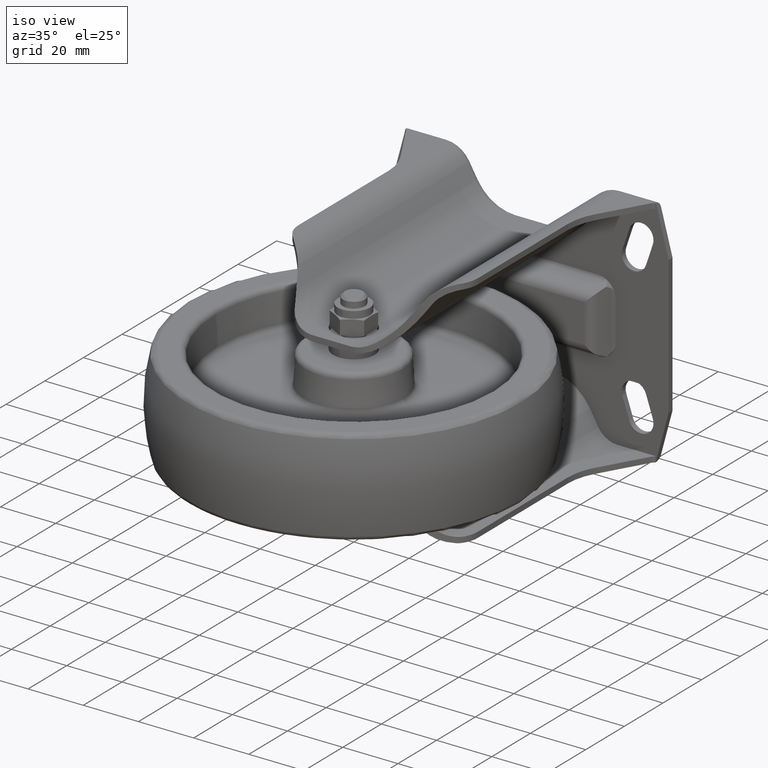
[diagram: clean part render]
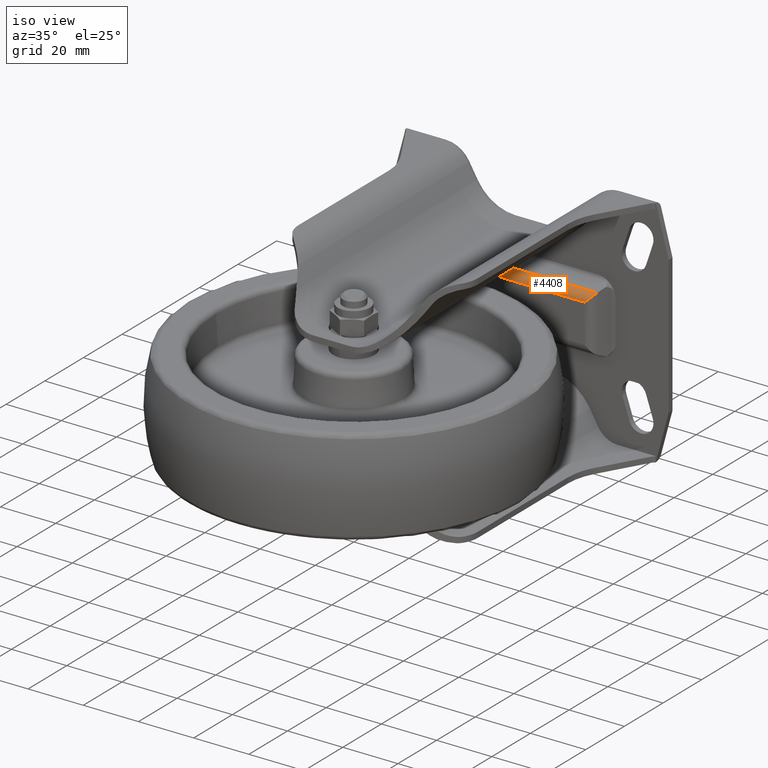
[diagram: same view with one face highlighted and labeled with its STEP entity id]
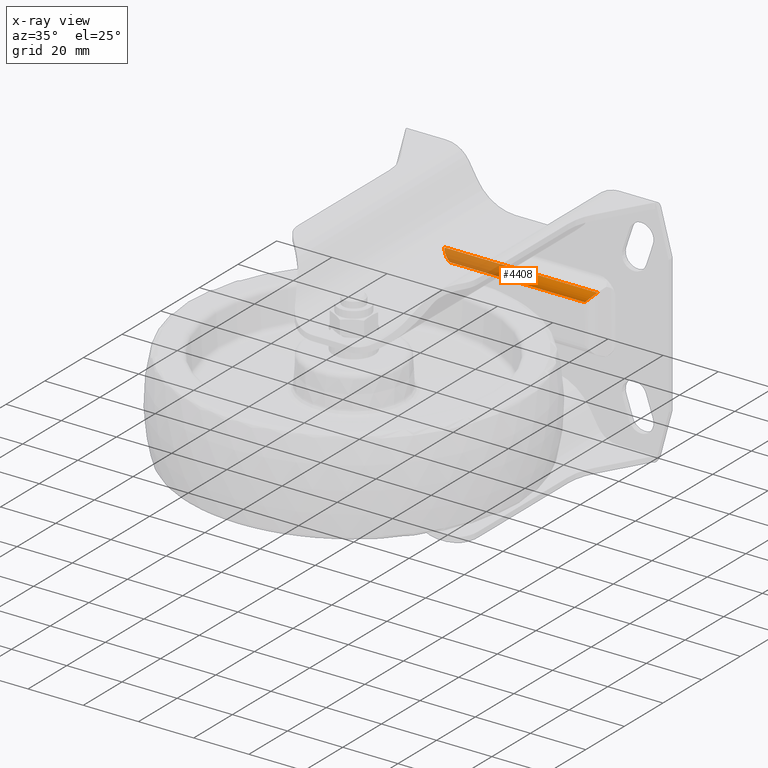
[diagram: x-ray of the same camera — body ghosted, the highlighted face saturated]
A machine part, iso view. The second image highlights one B-rep face of the part: STEP entity #4408.
The next image is the same camera in x-ray: the body ghosted, the highlighted face saturated — about 42% of this face is hidden behind the body in this view.
In plain terms, the highlighted cylindrical surface (edge-blend (fillet) strip) has radius 3.5 mm, axis along (1, 0, 0).
Its self-contained STEP definition (entity closure, byte-faithful):
#92=ELLIPSE('',#4857,4.94974746830583,3.5);
#95=ELLIPSE('',#4864,4.94974746830581,3.5);
#503=FACE_OUTER_BOUND('',#761,.T.);
#761=EDGE_LOOP('',(#3528,#3529,#3530,#3531));
#1037=LINE('',#7570,#1311);
#1045=LINE('',#7604,#1319);
#1311=VECTOR('',#5939,49.0122009601776);
#1319=VECTOR('',#5969,55.3563554694342);
#1925=VERTEX_POINT('',#7527);
#1928=VERTEX_POINT('',#7535);
#1932=VERTEX_POINT('',#7569);
#1934=VERTEX_POINT('',#7575);
#2485=EDGE_CURVE('',#1928,#1925,#92,.T.);
#2492=EDGE_CURVE('',#1928,#1932,#1037,.T.);
#2495=EDGE_CURVE('',#1934,#1932,#95,.T.);
#2505=EDGE_CURVE('',#1934,#1925,#1045,.T.);
#3528=ORIENTED_EDGE('',*,*,#2495,.F.);
#3529=ORIENTED_EDGE('',*,*,#2505,.T.);
#3530=ORIENTED_EDGE('',*,*,#2485,.F.);
#3531=ORIENTED_EDGE('',*,*,#2492,.T.);
#3959=CYLINDRICAL_SURFACE('',#4873,3.5);
#4408=ADVANCED_FACE('',(#503),#3959,.T.);
#4857=AXIS2_PLACEMENT_3D('',#7536,#5925,#5926);
#4864=AXIS2_PLACEMENT_3D('',#7576,#5944,#5945);
#4873=AXIS2_PLACEMENT_3D('',#7603,#5967,#5968);
#5925=DIRECTION('center_axis',(-0.707106781186549,0.,-0.707106781186546));
#5926=DIRECTION('ref_axis',(-0.707106781186546,-1.43551310508231E-15,0.707106781186549));
#5939=DIRECTION('',(1.,0.,0.));
#5944=DIRECTION('center_axis',(0.70710678118655,9.10708400807736E-32,-0.707106781186545));
#5945=DIRECTION('ref_axis',(0.707106781186545,-1.43551310508231E-15,0.70710678118655));
#5967=DIRECTION('center_axis',(1.,0.,0.));
#5968=DIRECTION('ref_axis',(0.,-1.,0.));
#5969=DIRECTION('',(-1.,0.,0.));
#7527=CARTESIAN_POINT('',(-27.6781777347171,86.5208360839076,10.1781777347171));
#7535=CARTESIAN_POINT('',(-24.5061004800888,84.5,7.00610048008878));
#7536=CARTESIAN_POINT('Origin',(-24.5061004800888,88.,7.00610048008879));
#7569=CARTESIAN_POINT('',(24.5061004800888,84.5,7.00610048008878));
#7570=CARTESIAN_POINT('',(-24.5061004800888,84.5,7.00610048008879));
#7575=CARTESIAN_POINT('',(27.6781777347171,86.5208360839076,10.1781777347171));
#7576=CARTESIAN_POINT('Origin',(24.5061004800888,88.,7.00610048008879));
#7603=CARTESIAN_POINT('Origin',(62.,88.,7.00610048008879));
#7604=CARTESIAN_POINT('',(27.6781777347171,86.5208360839076,10.1781777347171));